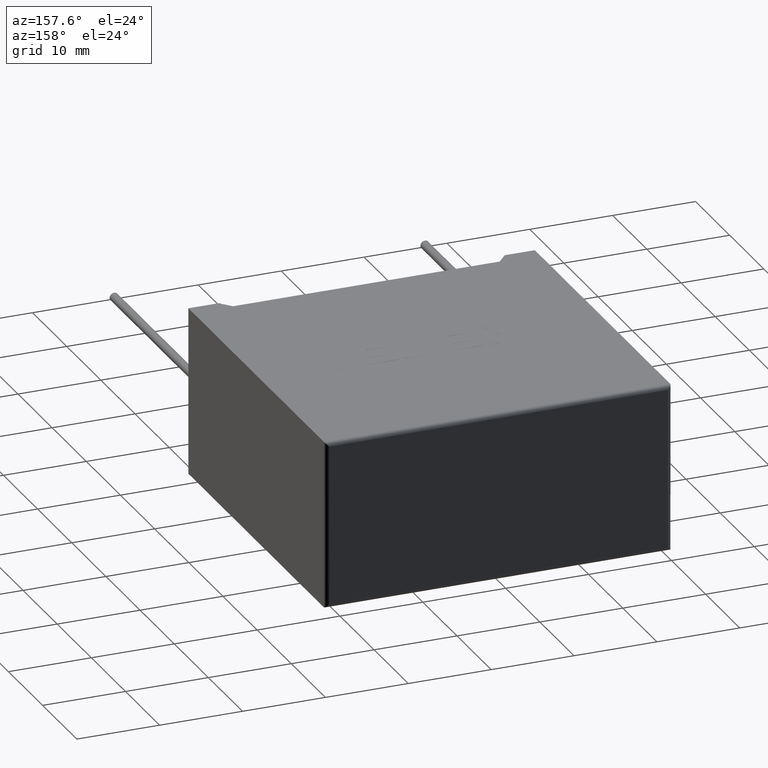
[diagram: clean part render]
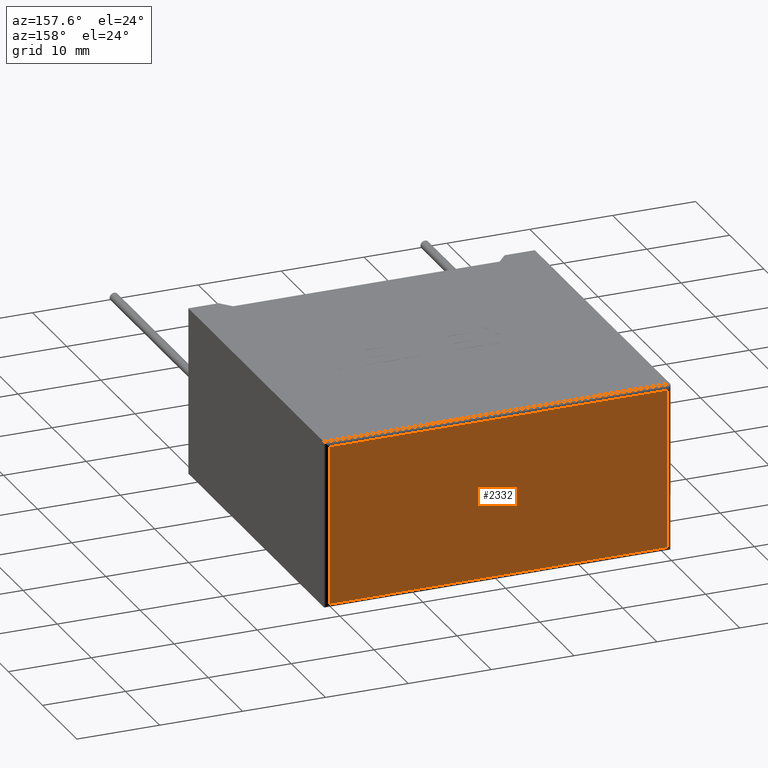
[diagram: same view with one face highlighted and labeled with its STEP entity id]
A machine part, auxiliary view. The second image highlights one B-rep face of the part: STEP entity #2332.
In plain terms, the highlighted planar face has unit normal (0, -1, 0).
Its self-contained STEP definition (entity closure, byte-faithful):
#107 = CARTESIAN_POINT ( 'NONE',  ( 0.5000000000000000000, 40.10000000000000142, 20.19999999999999929 ) ) ;
#115 = DIRECTION ( 'NONE',  ( -1.000000000000000000, 0.000000000000000000, 0.000000000000000000 ) ) ;
#119 = VERTEX_POINT ( 'NONE', #485 ) ;
#176 = LINE ( 'NONE', #1834, #441 ) ;
#181 = LINE ( 'NONE', #2495, #525 ) ;
#388 = EDGE_CURVE ( 'NONE', #2988, #2978, #1479, .T. ) ;
#423 = CARTESIAN_POINT ( 'NONE',  ( 0.000000000000000000, 40.10000000000000142, 20.19999999999999929 ) ) ;
#441 = VECTOR ( 'NONE', #2990, 1000.000000000000000 ) ;
#444 = VECTOR ( 'NONE', #2157, 1000.000000000000000 ) ;
#453 = CARTESIAN_POINT ( 'NONE',  ( 41.29999999999999716, 40.10000000000000142, 19.69999999999999929 ) ) ;
#485 = CARTESIAN_POINT ( 'NONE',  ( 0.5000000000000000000, 40.10000000000000142, 19.69999999999999929 ) ) ;
#525 = VECTOR ( 'NONE', #1554, 1000.000000000000000 ) ;
#1079 = AXIS2_PLACEMENT_3D ( 'NONE', #423, #1125, #2763 ) ;
#1125 = DIRECTION ( 'NONE',  ( 0.000000000000000000, -1.000000000000000000, 0.000000000000000000 ) ) ;
#1190 = CARTESIAN_POINT ( 'NONE',  ( 0.5000000000000000000, 40.10000000000000142, 0.5000000000000004441 ) ) ;
#1377 = EDGE_CURVE ( 'NONE', #119, #2993, #181, .T. ) ;
#1383 = ORIENTED_EDGE ( 'NONE', *, *, #2632, .T. ) ;
#1475 = FACE_OUTER_BOUND ( 'NONE', #3023, .T. ) ;
#1479 = LINE ( 'NONE', #1988, #2367 ) ;
#1554 = DIRECTION ( 'NONE',  ( 1.000000000000000000, -0.000000000000000000, -0.000000000000000000 ) ) ;
#1717 = PLANE ( 'NONE',  #1079 ) ;
#1834 = CARTESIAN_POINT ( 'NONE',  ( 41.29999999999999716, 40.10000000000000142, 20.19999999999999929 ) ) ;
#1988 = CARTESIAN_POINT ( 'NONE',  ( 0.000000000000000000, 40.10000000000000142, 0.5000000000000004441 ) ) ;
#2059 = ORIENTED_EDGE ( 'NONE', *, *, #3059, .T. ) ;
#2110 = CARTESIAN_POINT ( 'NONE',  ( 41.29999999999999716, 40.10000000000000142, 0.5000000000000004441 ) ) ;
#2157 = DIRECTION ( 'NONE',  ( -0.000000000000000000, -0.000000000000000000, 1.000000000000000000 ) ) ;
#2332 = ADVANCED_FACE ( 'NONE', ( #1475 ), #1717, .F. ) ;
#2353 = ORIENTED_EDGE ( 'NONE', *, *, #388, .T. ) ;
#2367 = VECTOR ( 'NONE', #115, 1000.000000000000000 ) ;
#2455 = ORIENTED_EDGE ( 'NONE', *, *, #1377, .T. ) ;
#2495 = CARTESIAN_POINT ( 'NONE',  ( 0.000000000000000000, 40.10000000000000142, 19.69999999999999929 ) ) ;
#2632 = EDGE_CURVE ( 'NONE', #2993, #2988, #176, .T. ) ;
#2719 = LINE ( 'NONE', #107, #444 ) ;
#2763 = DIRECTION ( 'NONE',  ( 0.000000000000000000, -0.000000000000000000, -1.000000000000000000 ) ) ;
#2978 = VERTEX_POINT ( 'NONE', #1190 ) ;
#2988 = VERTEX_POINT ( 'NONE', #2110 ) ;
#2990 = DIRECTION ( 'NONE',  ( 0.000000000000000000, 0.000000000000000000, -1.000000000000000000 ) ) ;
#2993 = VERTEX_POINT ( 'NONE', #453 ) ;
#3023 = EDGE_LOOP ( 'NONE', ( #2353, #2059, #2455, #1383 ) ) ;
#3059 = EDGE_CURVE ( 'NONE', #2978, #119, #2719, .T. ) ;